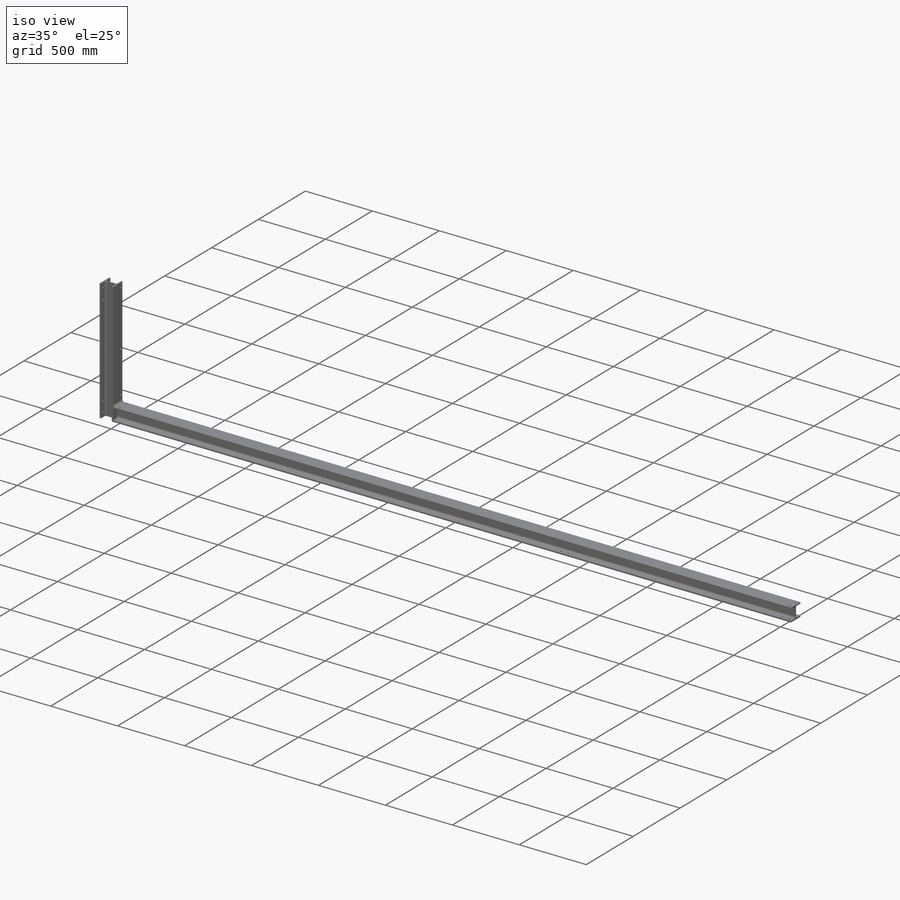
[diagram: iso view]
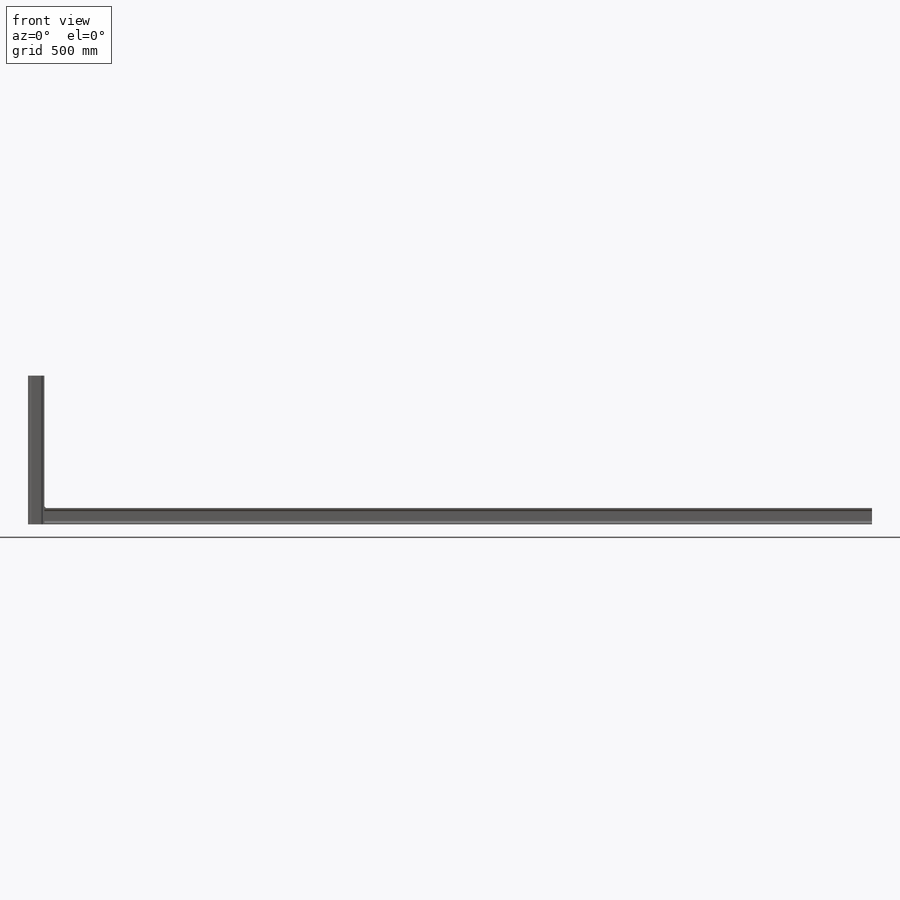
[diagram: front view]
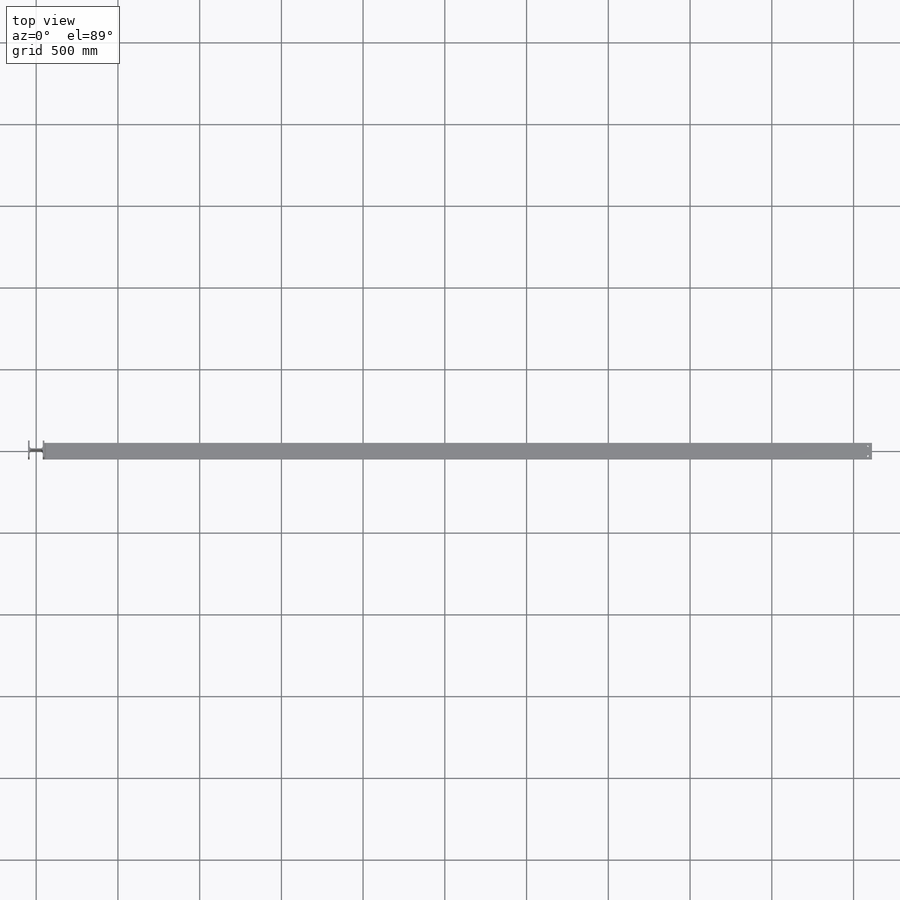
[diagram: top view]
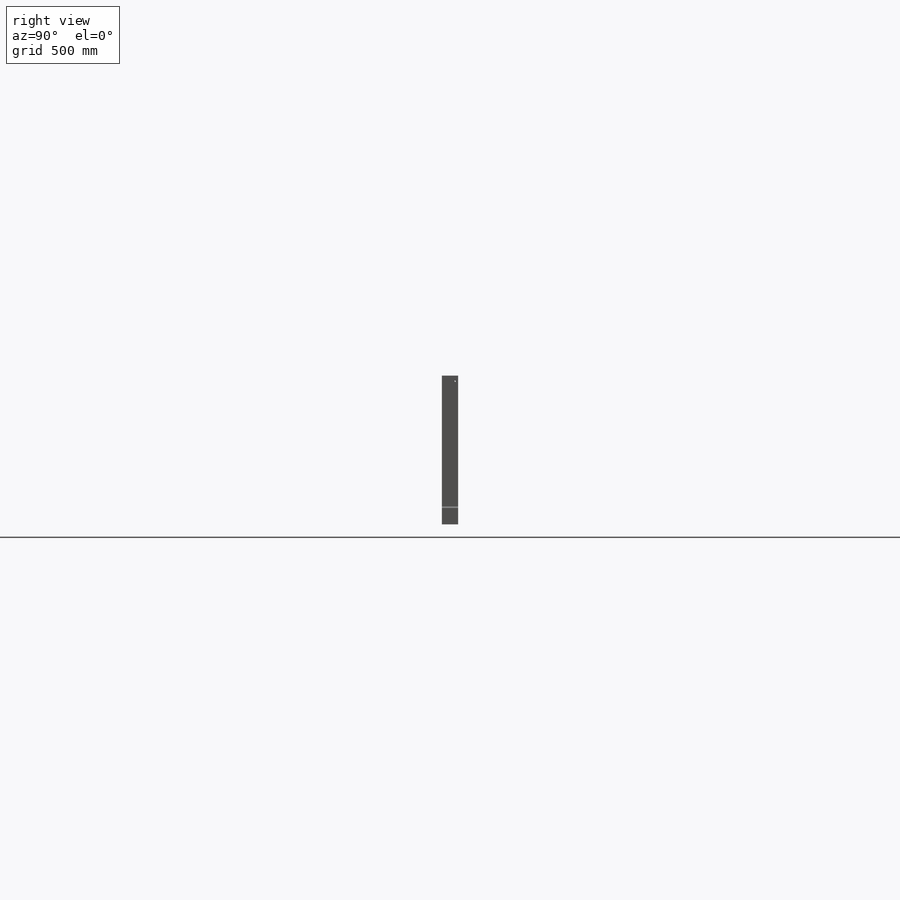
[diagram: right view]
SOLIDWORKS PART (.sldprt)
format: sldprt  version: not decoded by parser v0  size: 988,160 bytes
history: native  units: mm
features: sketch x21, hole x8, plane x6, chamfer x2, material x1, pattern_linear x1 + 1 further entry (+14 scaffold rows collapsed)
feature tree (54):
  scaffold x14  (default folders/planes/origin — collapsed)
  material  "Unlegierter Baustahl"
  "Zuschnittslistenelement2"
  plane  "Ebene vorne"
  plane  "Ebene oben"
  plane  "Ebene rechts"
  sketch  "3D-Skizze1"  dims[c1.D1=860.0mm c1.D2=~110.12684mm c1.D3=3573.0mm c2.D2=350.0mm c2.D3=3923.0mm c2.D10=3723.0mm c2.D4=300.0mm c2.D5=100.0mm c2.D6=3.0mm c2.D7=80.0mm c2.D8=60.0mm c2.D9=260.0mm c3.D3=2975.0mm c3.D10=3723.0mm c4.D3=4800.0mm]
  plane  "Ebene1"
  sketch  "Skizze2"  dims[D5=12.0mm D1=100.0mm D2=6.0mm D3=10.0mm D4=100.0mm]
  hole  "Ø13.0 (13) Anbindung_Schienenstreben"  Diameter=13mm Depth=10mm
  sketch  "Skizze18"  dims[D1=23.0mm D2=32.0mm]
  sketch  "Skizze17"  dims[hole-wizard template sketch: 59 standard entries collapsed; hole parameters kept: c18.Bohrerdurchmesser=13.0mm c18.Bohrungstiefe=10.0mm]
  hole  "Ø13.0 (13) Anbindung_Wanne_hinten"  Diameter=13mm Depth=10.001mm
  sketch  "Skizze20"  dims[D1=15.0mm D2=200.0mm D3=80.0mm]
  sketch  "Skizze21"  dims[hole-wizard template sketch: 59 standard entries collapsed; hole parameters kept: c18.Bohrerdurchmesser=13.0mm c18.Bohrungstiefe=10.001mm]
  hole  "Ø13.0 (13) Anbindung_Taeger_hinten"  Diameter=13mm Depth=10.001mm
  sketch  "Skizze23"  dims[D1=56.0mm D2=56.0mm D3=110.0mm]
  sketch  "Skizze22"  dims[hole-wizard template sketch: 59 standard entries collapsed; hole parameters kept: c18.Bohrerdurchmesser=13.0mm c18.Bohrungstiefe=10.001mm]
  pattern_linear  "LinMuster_Anbindung_Taeger_hinten"  Count1=2 Count2=2 Spacing1=1651mm Spacing2=3302mm
  hole  "Ø13.0 (13) Anbindung_Grundtraeger"  Diameter=13mm Depth=10mm
  sketch  "Skizze25"  dims[c1.D1=0.0mm c1.D2=35.0mm c1.D3=22.0mm c1.D4=56.0mm c2.D1=150.0mm]
  sketch  "Skizze24"  dims[hole-wizard template sketch: 59 standard entries collapsed; hole parameters kept: c18.Bohrerdurchmesser=13.0mm c18.Bohrungstiefe=10.0mm]
  hole  "Ø13.0 (13) Bohrung_Wannenverschraubung_vo_hi"  Diameter=13mm Depth=10.001mm
  sketch  "3D-Skizze7"  dims[c1.D1=~334.797176mm c1.D3=442.0mm c1.D2=85.0mm c2.D3=~298.351747mm c2.D4=314.0mm c3.D3=~4123.353611mm c3.D4=40.0mm c3.D1=~4139.390414mm c4.D3=~4139.390414mm c4.D1=54.0mm c5.D3=33.0mm c5.D4=15.0mm]
  sketch  "Skizze11"  dims[hole-wizard template sketch: 59 standard entries collapsed; hole parameters kept: c18.Bohrerdurchmesser=13.0mm c18.Bohrungstiefe=10.001mm]
  hole  "Ø13.0 (13) Bohrung_Wannenverschraubung_mittig"  Diameter=13mm Depth=10mm
  sketch  "Skizze13"  dims[c1.D1=6.0mm c1.D2=8.0mm c1.D3=400.0mm c1.D4=10.0mm c1.D5=50.0mm c2.D3=400.0mm]
  sketch  "Skizze14"  dims[hole-wizard template sketch: 59 standard entries collapsed; hole parameters kept: c18.Bohrerdurchmesser=13.0mm c18.Bohrungstiefe=10.0mm]
  hole  "Ø13.0 (13) Bockbohrungen"  Diameter=13mm Depth=10mm
  sketch  "Skizze27"  dims[D1=28.0mm D2=191.5mm D3=137.0mm]
  sketch  "Skizze26"  dims[hole-wizard template sketch: 59 standard entries collapsed; hole parameters kept: c18.Bohrerdurchmesser=13.0mm c18.Bohrungstiefe=10.0mm]
  hole  "Ø11.0 (11) Durchmesser Bohrung1"  Diameter=11mm Depth=10mm
  sketch  "Skizze29"  dims[D1=90.0mm D2=394.0mm D3=14.0mm]
  sketch  "Skizze28"  dims[hole-wizard template sketch: 59 standard entries collapsed; hole parameters kept: c18.Bohrerdurchmesser=11.0mm c18.Bohrungstiefe=10.0mm]
  sketch  "Skizze_Ebene_Anbindung_Seitenschiene_mittig"
  plane  "Ebene_Anbindung_Seitenschiene_mittig"
  sketch  "Skizze_Ebene_Anbindung_Seitenschiene_unten"  dims[D1=25.0mm D2=20.0mm D3=200.0mm]
  plane  "Ebene_Anbindung_Seitenschiene_unten"
  chamfer  "Fase_8x60°_Lieger"  Distance=8mm Angle=30deg
  chamfer  "Kehlnaht_außen"  Distance=6mm
  sketch  "Skizze_Kontrolle_Höhe_unterster_QTräger"  dims[D1=350.0mm D2=300.0mm D3=110.0mm D4=2161.0mm]
decode coverage: 31 of 32 modeling features carry decoded parameters; 1 rows unclassified (native names shown)
note: ~ marks probable driven/reference dimensions
summary: Diameter pulled from absorbed wizard sketch
note: suppression state not decoded; provenance and decode notes live in map.json
